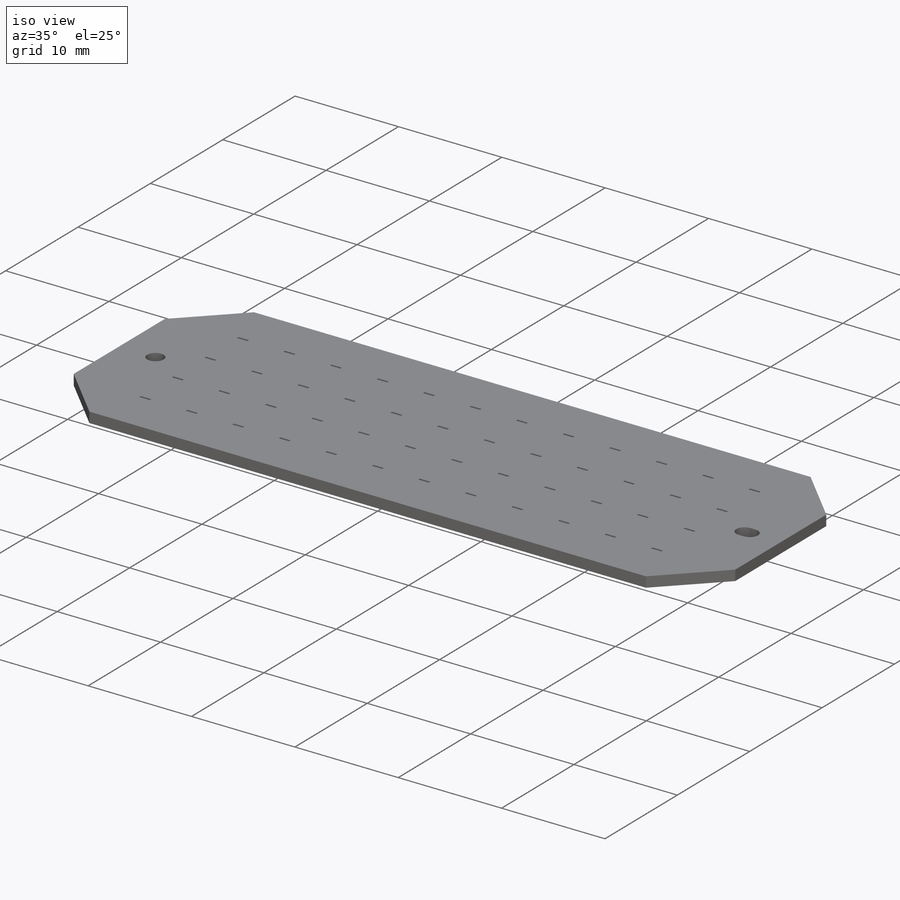
[diagram: iso view]
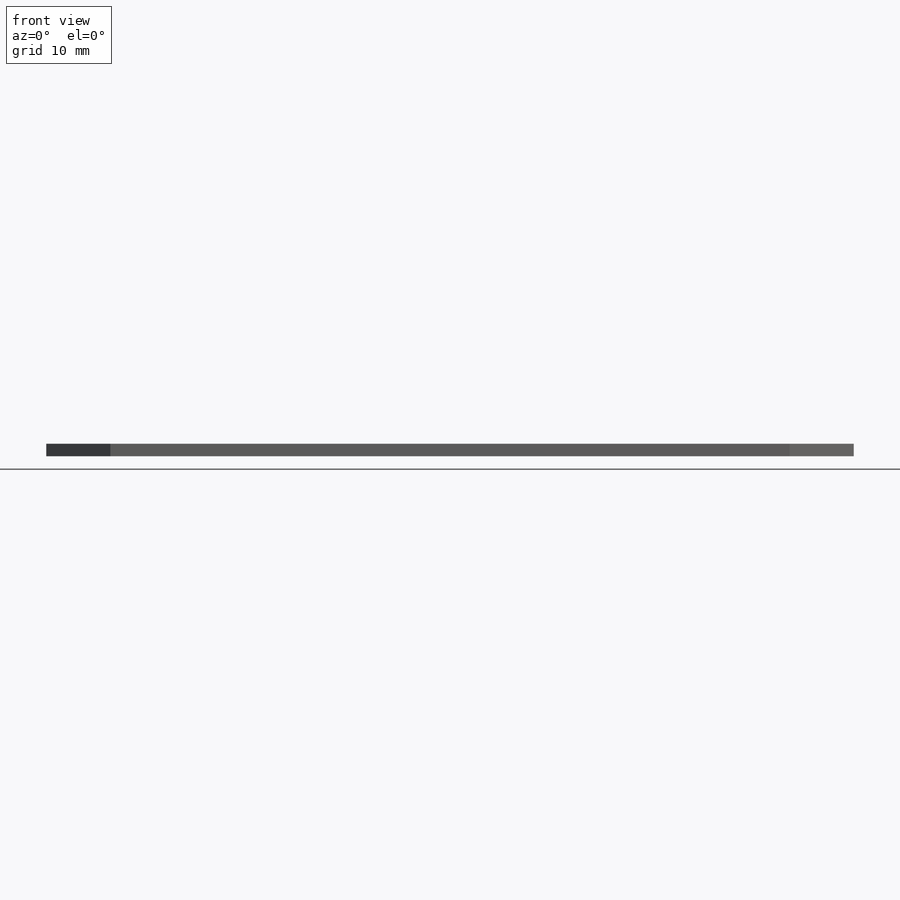
[diagram: front view]
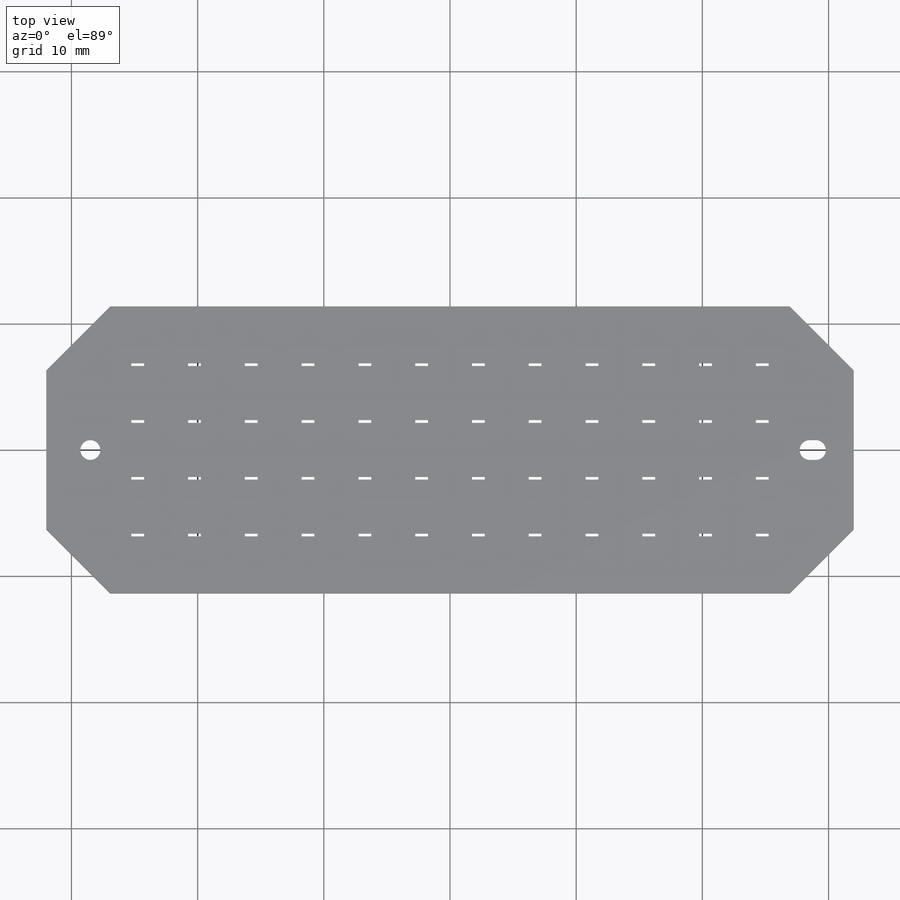
[diagram: top view]
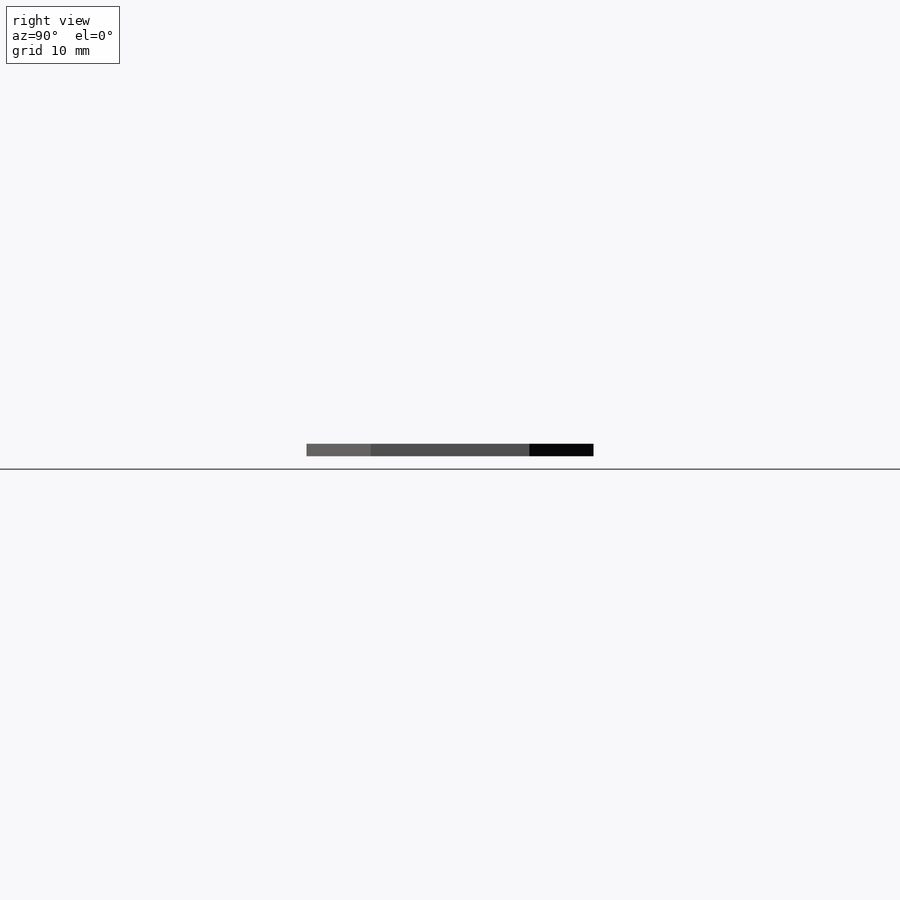
[diagram: right view]
SOLIDWORKS PART (.sldprt)
format: sldprt  version: not decoded by parser v0  size: 670,720 bytes
history: native  units: mm
features: sketch x3, cut_extrude x2, material x1, extrude x1, chamfer x1 (+14 scaffold rows collapsed)
feature tree (22):
  scaffold x14  (default folders/planes/origin — collapsed)
  material  "Material <not specified>"
  sketch  "Sketch1"  dims[D1=22.75mm D2=64.0mm]
  extrude  "Extrude1"  Depth=1mm
  chamfer  "Chamfer1"  Distance=5.08mm Angle=45deg
  sketch  "Sketch4"  dims[D1=1.5875mm]
  cut_extrude  "Extrude2"  [1 undecoded]
  sketch  "Sketch5"  dims[D1=0.21mm D2=1.01mm]
  cut_extrude  "Extrude5"  [1 undecoded]
decode coverage: 5 of 7 modeling features carry decoded parameters
note: 2 parameter values undecoded
note: suppression state not decoded; provenance and decode notes live in map.json
